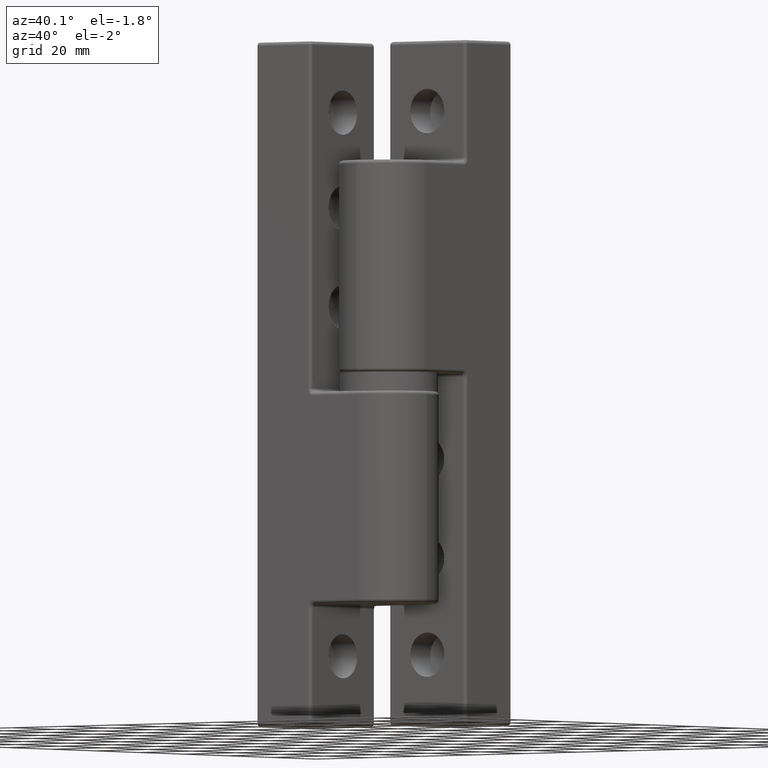
[diagram: clean part render]
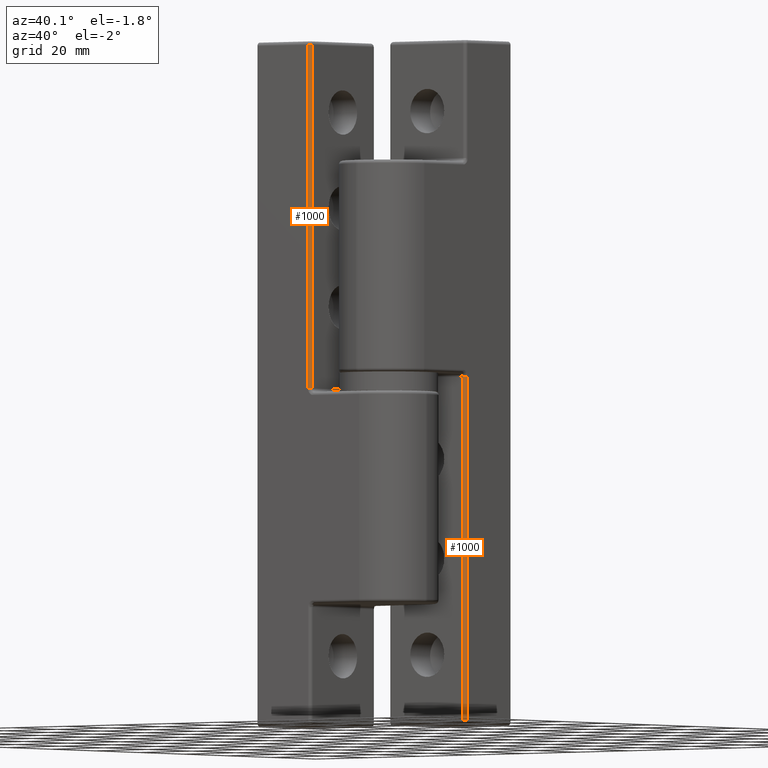
[diagram: same view with one multi-face feature highlighted, each face labeled with its STEP entity id]
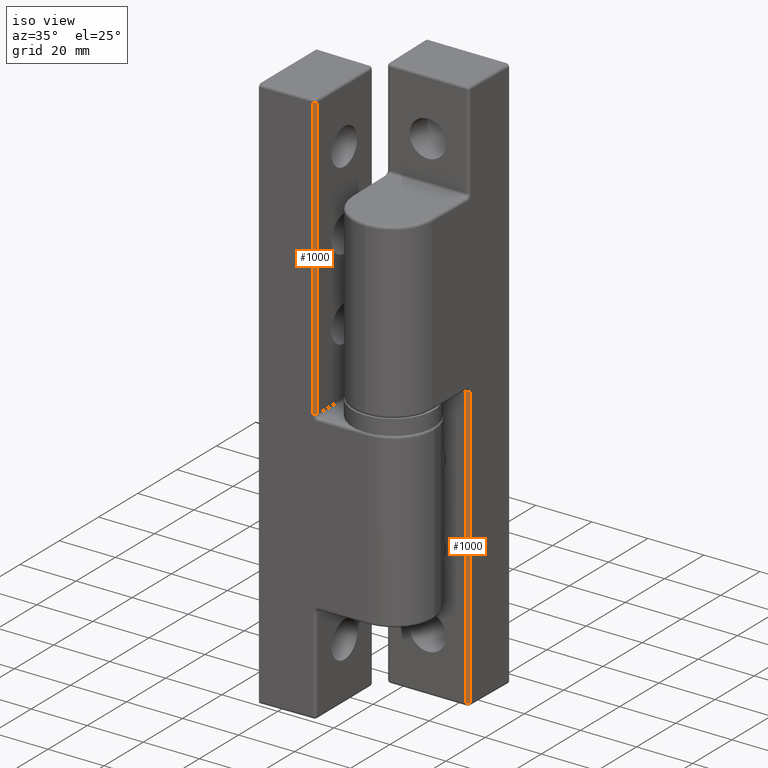
[diagram: same view with one multi-face feature highlighted, each face labeled with its STEP entity id]
A machine part, auxiliary view. The highlighted faces form ONE feature: a constant-radius fillet chain: 2 tangent blend faces with common blend radius 1 mm. The faces share edges in the B-rep.
A second angle (iso view) of the same feature is appended — it is thin or edge-on in the first view.
Their STEP definitions:
[1] entity #1000 (Cylinder):
#148=LINE('',#1854,#192);
#149=LINE('',#1855,#193);
#192=VECTOR('',#1410,100.5);
#193=VECTOR('',#1411,100.5);
#214=CYLINDRICAL_SURFACE('',#1126,1.);
#267=FACE_OUTER_BOUND('',#345,.T.);
#345=EDGE_LOOP('',(#859,#860,#861,#862));
#440=CIRCLE('',#1096,1.);
#441=CIRCLE('',#1098,1.);
#537=VERTEX_POINT('',#1764);
#540=VERTEX_POINT('',#1769);
#541=VERTEX_POINT('',#1773);
#542=VERTEX_POINT('',#1774);
#645=EDGE_CURVE('',#537,#540,#440,.T.);
#646=EDGE_CURVE('',#541,#542,#441,.F.);
#676=EDGE_CURVE('',#542,#537,#148,.T.);
#677=EDGE_CURVE('',#540,#541,#149,.T.);
#859=ORIENTED_EDGE('',*,*,#646,.T.);
#860=ORIENTED_EDGE('',*,*,#676,.T.);
#861=ORIENTED_EDGE('',*,*,#645,.T.);
#862=ORIENTED_EDGE('',*,*,#677,.T.);
#1000=ADVANCED_FACE('',(#267),#214,.T.);
#1096=AXIS2_PLACEMENT_3D('',#1771,#1335,#1336);
#1098=AXIS2_PLACEMENT_3D('',#1775,#1339,#1340);
#1126=AXIS2_PLACEMENT_3D('',#1853,#1408,#1409);
#1335=DIRECTION('center_axis',(0.,0.,1.));
#1336=DIRECTION('ref_axis',(0.999815140029847,0.0192272142313432,0.));
#1339=DIRECTION('center_axis',(0.,0.,1.));
#1340=DIRECTION('ref_axis',(0.,1.,0.));
#1408=DIRECTION('center_axis',(0.,0.,1.));
#1409=DIRECTION('ref_axis',(0.700275940529394,0.713872262464142,0.));
#1410=DIRECTION('',(0.,0.,-1.));
#1411=DIRECTION('',(0.,0.,1.));
#1764=CARTESIAN_POINT('',(14.6342456304956,19.0192272142314,-1.5));
#1769=CARTESIAN_POINT('',(13.6344304904657,20.,-1.5));
#1771=CARTESIAN_POINT('Origin',(13.6344304904657,19.,-1.5));
#1773=CARTESIAN_POINT('',(13.6344304904657,20.,99.));
#1774=CARTESIAN_POINT('',(14.6342456304956,19.0192272142314,99.));
#1775=CARTESIAN_POINT('Origin',(13.6344304904657,19.,99.));
#1853=CARTESIAN_POINT('Origin',(13.6344304904657,19.,24.375));
#1854=CARTESIAN_POINT('',(14.6342456304956,19.0192272142314,24.375));
#1855=CARTESIAN_POINT('',(13.6344304904657,20.,24.375));
[2] entity #1000 (Cylinder):
#148=LINE('',#1854,#192);
#149=LINE('',#1855,#193);
#192=VECTOR('',#1410,100.5);
#193=VECTOR('',#1411,100.5);
#214=CYLINDRICAL_SURFACE('',#1126,1.);
#267=FACE_OUTER_BOUND('',#345,.T.);
#345=EDGE_LOOP('',(#859,#860,#861,#862));
#440=CIRCLE('',#1096,1.);
#441=CIRCLE('',#1098,1.);
#537=VERTEX_POINT('',#1764);
#540=VERTEX_POINT('',#1769);
#541=VERTEX_POINT('',#1773);
#542=VERTEX_POINT('',#1774);
#645=EDGE_CURVE('',#537,#540,#440,.T.);
#646=EDGE_CURVE('',#541,#542,#441,.F.);
#676=EDGE_CURVE('',#542,#537,#148,.T.);
#677=EDGE_CURVE('',#540,#541,#149,.T.);
#859=ORIENTED_EDGE('',*,*,#646,.T.);
#860=ORIENTED_EDGE('',*,*,#676,.T.);
#861=ORIENTED_EDGE('',*,*,#645,.T.);
#862=ORIENTED_EDGE('',*,*,#677,.T.);
#1000=ADVANCED_FACE('',(#267),#214,.T.);
#1096=AXIS2_PLACEMENT_3D('',#1771,#1335,#1336);
#1098=AXIS2_PLACEMENT_3D('',#1775,#1339,#1340);
#1126=AXIS2_PLACEMENT_3D('',#1853,#1408,#1409);
#1335=DIRECTION('center_axis',(0.,0.,1.));
#1336=DIRECTION('ref_axis',(0.999815140029847,0.0192272142313432,0.));
#1339=DIRECTION('center_axis',(0.,0.,1.));
#1340=DIRECTION('ref_axis',(0.,1.,0.));
#1408=DIRECTION('center_axis',(0.,0.,1.));
#1409=DIRECTION('ref_axis',(0.700275940529394,0.713872262464142,0.));
#1410=DIRECTION('',(0.,0.,-1.));
#1411=DIRECTION('',(0.,0.,1.));
#1764=CARTESIAN_POINT('',(14.6342456304956,19.0192272142314,-1.5));
#1769=CARTESIAN_POINT('',(13.6344304904657,20.,-1.5));
#1771=CARTESIAN_POINT('Origin',(13.6344304904657,19.,-1.5));
#1773=CARTESIAN_POINT('',(13.6344304904657,20.,99.));
#1774=CARTESIAN_POINT('',(14.6342456304956,19.0192272142314,99.));
#1775=CARTESIAN_POINT('Origin',(13.6344304904657,19.,99.));
#1853=CARTESIAN_POINT('Origin',(13.6344304904657,19.,24.375));
#1854=CARTESIAN_POINT('',(14.6342456304956,19.0192272142314,24.375));
#1855=CARTESIAN_POINT('',(13.6344304904657,20.,24.375));